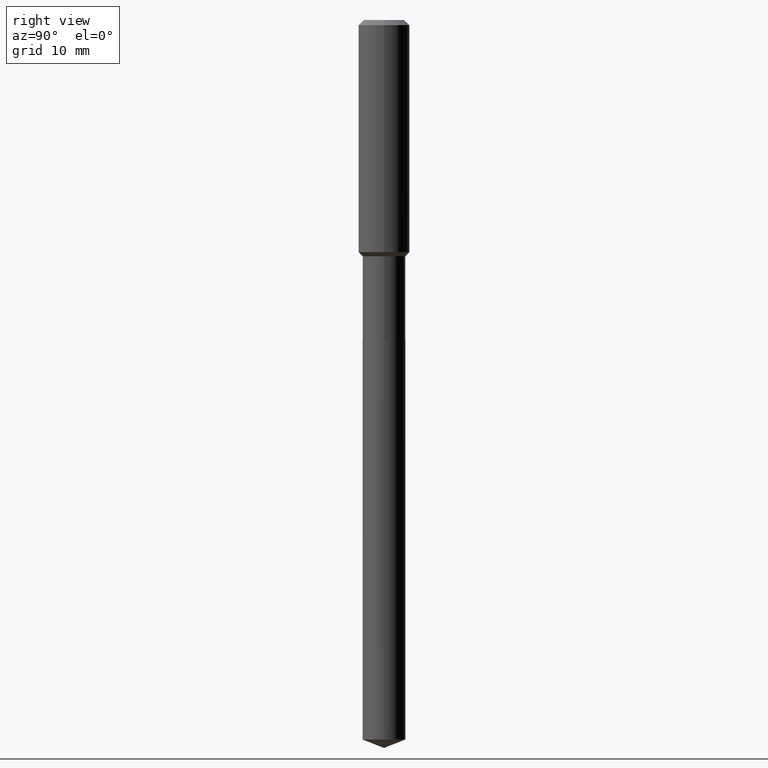
[diagram: clean part render]
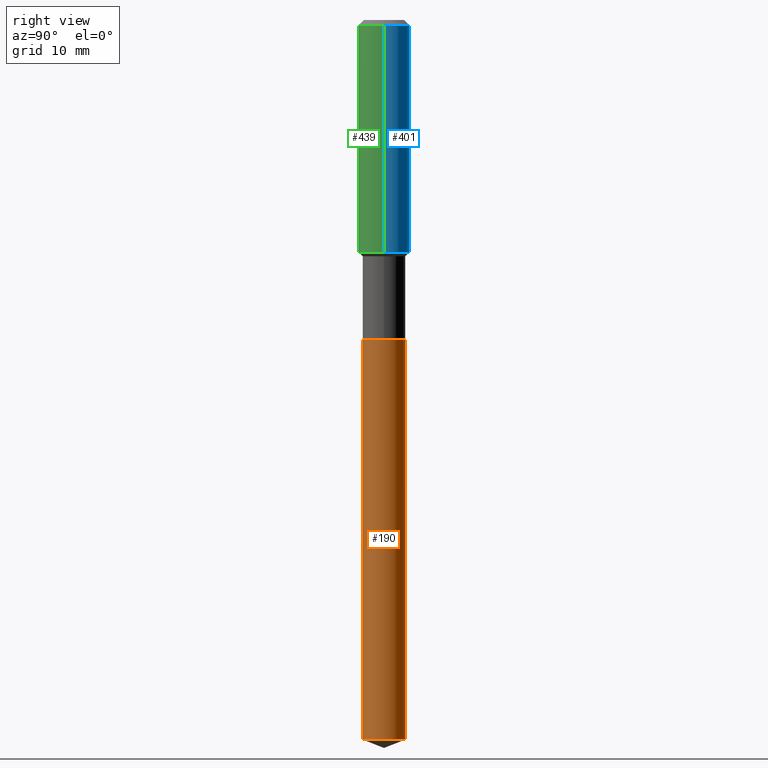
[diagram: same view with three faces highlighted in distinct colors, each labeled with its STEP entity id]
A machine part, right view with three faces highlighted in distinct colors.
Their STEP definitions:

[orange] entity #190 — the highlighted cylindrical surface (edge-blend (fillet) strip) has radius 3.3503 mm, axis along (-0, 0, 1).
#6 = AXIS2_PLACEMENT_3D ( 'NONE', #229, #231, #264 ) ;
#9 = ORIENTED_EDGE ( 'NONE', *, *, #341, .F. ) ;
#29 = LINE ( 'NONE', #41, #478 ) ;
#30 = EDGE_CURVE ( 'NONE', #297, #129, #272, .T. ) ;
#31 = DIRECTION ( 'NONE',  ( -2.445397477310179660E-29, 3.491583485851871163E-15, 1.000000000000000000 ) ) ;
#41 = CARTESIAN_POINT ( 'NONE',  ( 9.372058684676199937E-16, 0.1318999999999931061, -1.968500000000000361 ) ) ;
#70 = DIRECTION ( 'NONE',  ( -2.445397477310179380E-29, 3.491583485851871163E-15, 1.000000000000000000 ) ) ;
#81 = ORIENTED_EDGE ( 'NONE', *, *, #30, .F. ) ;
#87 = ORIENTED_EDGE ( 'NONE', *, *, #274, .T. ) ;
#91 = LINE ( 'NONE', #234, #462 ) ;
#107 = CYLINDRICAL_SURFACE ( 'NONE', #421, 0.1318999999999999895 ) ;
#129 = VERTEX_POINT ( 'NONE', #276 ) ;
#149 = VERTEX_POINT ( 'NONE', #199 ) ;
#151 = ORIENTED_EDGE ( 'NONE', *, *, #353, .T. ) ;
#152 = AXIS2_PLACEMENT_3D ( 'NONE', #250, #219, #461 ) ;
#171 = DIRECTION ( 'NONE',  ( -6.982962677686265922E-15, -1.000000000000000000, 4.142301734138382417E-15 ) ) ;
#190 = ADVANCED_FACE ( 'NONE', ( #446 ), #107, .T. ) ;
#199 = CARTESIAN_POINT ( 'NONE',  ( 9.372058684676801443E-16, 0.1318999999999844741, -4.436243208266390070 ) ) ;
#219 = DIRECTION ( 'NONE',  ( -2.445397477310179660E-29, 3.491583485851871163E-15, 1.000000000000000000 ) ) ;
#229 = CARTESIAN_POINT ( 'NONE',  ( 4.813905344975441835E-29, -6.872981015512731707E-15, -1.968500000000000139 ) ) ;
#231 = DIRECTION ( 'NONE',  ( -2.445397477310179660E-29, 3.491583485851871163E-15, 1.000000000000000000 ) ) ;
#234 = CARTESIAN_POINT ( 'NONE',  ( -9.210527771867702945E-16, -0.1319000000000068729, -1.968499999999999250 ) ) ;
#247 = CARTESIAN_POINT ( 'NONE',  ( 4.813905344975440714E-29, -6.872981015512730918E-15, -1.968499999999999694 ) ) ;
#250 = CARTESIAN_POINT ( 'NONE',  ( 1.084851836111940160E-28, -1.548931244881877348E-14, -4.436243208266390070 ) ) ;
#257 = VERTEX_POINT ( 'NONE', #273 ) ;
#264 = DIRECTION ( 'NONE',  ( -6.982962677686265922E-15, -1.000000000000000000, 4.142301734138382417E-15 ) ) ;
#272 = CIRCLE ( 'NONE', #6, 0.1318999999999999895 ) ;
#273 = CARTESIAN_POINT ( 'NONE',  ( -9.210527771867097494E-16, -0.1319000000000154493, -4.436243208266389182 ) ) ;
#274 = EDGE_CURVE ( 'NONE', #257, #149, #486, .T. ) ;
#276 = CARTESIAN_POINT ( 'NONE',  ( 9.372058684676809332E-16, 0.1318999999999931061, -1.968500000000000583 ) ) ;
#297 = VERTEX_POINT ( 'NONE', #364 ) ;
#341 = EDGE_CURVE ( 'NONE', #257, #297, #91, .T. ) ;
#353 = EDGE_CURVE ( 'NONE', #149, #129, #29, .T. ) ;
#364 = CARTESIAN_POINT ( 'NONE',  ( -9.210527771867702945E-16, -0.1319000000000068729, -1.968499999999999472 ) ) ;
#391 = EDGE_LOOP ( 'NONE', ( #87, #151, #81, #9 ) ) ;
#400 = DIRECTION ( 'NONE',  ( -2.445397477310179380E-29, 3.491583485851871163E-15, 1.000000000000000000 ) ) ;
#421 = AXIS2_PLACEMENT_3D ( 'NONE', #247, #31, #171 ) ;
#446 = FACE_OUTER_BOUND ( 'NONE', #391, .T. ) ;
#461 = DIRECTION ( 'NONE',  ( -6.982962677686265922E-15, -1.000000000000000000, 4.142301734138382417E-15 ) ) ;
#462 = VECTOR ( 'NONE', #70, 39.37007874015748143 ) ;
#478 = VECTOR ( 'NONE', #400, 39.37007874015748143 ) ;
#486 = CIRCLE ( 'NONE', #152, 0.1318999999999999895 ) ;

[blue] entity #401 — the highlighted cylindrical surface (edge-blend (fillet) strip) has radius 4.0005 mm, axis along (-0, 0, 1).
#26 = DIRECTION ( 'NONE',  ( -2.445468806185136597E-29, 3.491481338843145583E-15, 1.000000000000000000 ) ) ;
#36 = CYLINDRICAL_SURFACE ( 'NONE', #306, 0.1575000000000000844 ) ;
#44 = EDGE_CURVE ( 'NONE', #348, #385, #94, .T. ) ;
#56 = ORIENTED_EDGE ( 'NONE', *, *, #258, .T. ) ;
#69 = AXIS2_PLACEMENT_3D ( 'NONE', #473, #26, #386 ) ;
#88 = LINE ( 'NONE', #172, #449 ) ;
#94 = CIRCLE ( 'NONE', #69, 0.1575000000000001676 ) ;
#104 = DIRECTION ( 'NONE',  ( -2.445468806185136597E-29, 3.491481338843145583E-15, 1.000000000000000000 ) ) ;
#112 = CARTESIAN_POINT ( 'NONE',  ( 0.1575000000000000844, -1.099816621735587677E-15, 7.679978421878603638E-30 ) ) ;
#117 = CIRCLE ( 'NONE', #213, 0.1575000000000000011 ) ;
#172 = CARTESIAN_POINT ( 'NONE',  ( -0.1575000000000000844, 1.119104808822158392E-15, -7.747322767151481189E-30 ) ) ;
#196 = VERTEX_POINT ( 'NONE', #320 ) ;
#204 = CARTESIAN_POINT ( 'NONE',  ( 0.1575000000000001676, -6.095777269486245186E-15, -1.430900000000000061 ) ) ;
#213 = AXIS2_PLACEMENT_3D ( 'NONE', #223, #381, #346 ) ;
#223 = CARTESIAN_POINT ( 'NONE',  ( 7.703226739483228723E-31, -1.099816621735597661E-16, -0.03150000000000019451 ) ) ;
#232 = ORIENTED_EDGE ( 'NONE', *, *, #267, .F. ) ;
#237 = FACE_OUTER_BOUND ( 'NONE', #483, .T. ) ;
#258 = EDGE_CURVE ( 'NONE', #385, #372, #88, .T. ) ;
#261 = ORIENTED_EDGE ( 'NONE', *, *, #44, .T. ) ;
#267 = EDGE_CURVE ( 'NONE', #348, #196, #334, .T. ) ;
#283 = DIRECTION ( 'NONE',  ( 1.000000000000000000, -6.982962677686267499E-15, 4.876176775795936353E-29 ) ) ;
#306 = AXIS2_PLACEMENT_3D ( 'NONE', #443, #104, #283 ) ;
#320 = CARTESIAN_POINT ( 'NONE',  ( 0.1575000000000000011, -1.209798283909146741E-15, -0.03150000000000019451 ) ) ;
#334 = LINE ( 'NONE', #112, #419 ) ;
#346 = DIRECTION ( 'NONE',  ( 1.000000000000000000, -6.982962677686265922E-15, 0.000000000000000000 ) ) ;
#348 = VERTEX_POINT ( 'NONE', #204 ) ;
#372 = VERTEX_POINT ( 'NONE', #397 ) ;
#381 = DIRECTION ( 'NONE',  ( -2.445468806185136597E-29, 3.491481338843145583E-15, 1.000000000000000000 ) ) ;
#385 = VERTEX_POINT ( 'NONE', #433 ) ;
#386 = DIRECTION ( 'NONE',  ( 1.000000000000000000, -6.982962677686267499E-15, 0.000000000000000000 ) ) ;
#397 = CARTESIAN_POINT ( 'NONE',  ( -0.1575000000000000011, -1.433866346139949795E-15, -0.03150000000000019451 ) ) ;
#401 = ADVANCED_FACE ( 'NONE', ( #237 ), #36, .T. ) ;
#414 = DIRECTION ( 'NONE',  ( -2.445468806185136877E-29, 3.491481338843145188E-15, 1.000000000000000000 ) ) ;
#419 = VECTOR ( 'NONE', #414, 39.37007874015748143 ) ;
#433 = CARTESIAN_POINT ( 'NONE',  ( -0.1575000000000001676, -3.876855838928498525E-15, -1.430900000000000061 ) ) ;
#443 = CARTESIAN_POINT ( 'NONE',  ( 0.000000000000000000, 0.000000000000000000, 0.000000000000000000 ) ) ;
#449 = VECTOR ( 'NONE', #452, 39.37007874015748143 ) ;
#452 = DIRECTION ( 'NONE',  ( -2.445468806185136877E-29, 3.491481338843145188E-15, 1.000000000000000000 ) ) ;
#460 = EDGE_CURVE ( 'NONE', #196, #372, #117, .T. ) ;
#469 = ORIENTED_EDGE ( 'NONE', *, *, #460, .F. ) ;
#473 = CARTESIAN_POINT ( 'NONE',  ( 3.499221314770312017E-29, -4.995960647750656917E-15, -1.430900000000000061 ) ) ;
#483 = EDGE_LOOP ( 'NONE', ( #261, #56, #469, #232 ) ) ;

[green] entity #439 — the highlighted cylindrical surface (edge-blend (fillet) strip) has radius 4.0005 mm, axis along (-0, 0, 1).
#18 = AXIS2_PLACEMENT_3D ( 'NONE', #58, #354, #358 ) ;
#58 = CARTESIAN_POINT ( 'NONE',  ( 3.499221314770312017E-29, -4.995960647750656917E-15, -1.430900000000000061 ) ) ;
#74 = DIRECTION ( 'NONE',  ( -2.445468806185136597E-29, 3.491481338843145583E-15, 1.000000000000000000 ) ) ;
#76 = AXIS2_PLACEMENT_3D ( 'NONE', #475, #268, #132 ) ;
#88 = LINE ( 'NONE', #172, #449 ) ;
#112 = CARTESIAN_POINT ( 'NONE',  ( 0.1575000000000000844, -1.099816621735587677E-15, 7.679978421878603638E-30 ) ) ;
#132 = DIRECTION ( 'NONE',  ( 1.000000000000000000, -6.982962677686265922E-15, 0.000000000000000000 ) ) ;
#172 = CARTESIAN_POINT ( 'NONE',  ( -0.1575000000000000844, 1.119104808822158392E-15, -7.747322767151481189E-30 ) ) ;
#196 = VERTEX_POINT ( 'NONE', #320 ) ;
#204 = CARTESIAN_POINT ( 'NONE',  ( 0.1575000000000001676, -6.095777269486245186E-15, -1.430900000000000061 ) ) ;
#253 = EDGE_CURVE ( 'NONE', #372, #196, #300, .T. ) ;
#258 = EDGE_CURVE ( 'NONE', #385, #372, #88, .T. ) ;
#265 = ORIENTED_EDGE ( 'NONE', *, *, #349, .T. ) ;
#267 = EDGE_CURVE ( 'NONE', #348, #196, #334, .T. ) ;
#268 = DIRECTION ( 'NONE',  ( -2.445468806185136597E-29, 3.491481338843145583E-15, 1.000000000000000000 ) ) ;
#275 = AXIS2_PLACEMENT_3D ( 'NONE', #458, #74, #336 ) ;
#285 = CIRCLE ( 'NONE', #18, 0.1575000000000001676 ) ;
#288 = CYLINDRICAL_SURFACE ( 'NONE', #275, 0.1575000000000000844 ) ;
#300 = CIRCLE ( 'NONE', #76, 0.1575000000000000011 ) ;
#320 = CARTESIAN_POINT ( 'NONE',  ( 0.1575000000000000011, -1.209798283909146741E-15, -0.03150000000000019451 ) ) ;
#334 = LINE ( 'NONE', #112, #419 ) ;
#336 = DIRECTION ( 'NONE',  ( 1.000000000000000000, -6.982962677686267499E-15, 4.876176775795936353E-29 ) ) ;
#348 = VERTEX_POINT ( 'NONE', #204 ) ;
#349 = EDGE_CURVE ( 'NONE', #385, #348, #285, .T. ) ;
#354 = DIRECTION ( 'NONE',  ( -2.445468806185136597E-29, 3.491481338843145583E-15, 1.000000000000000000 ) ) ;
#358 = DIRECTION ( 'NONE',  ( 1.000000000000000000, -6.982962677686267499E-15, 0.000000000000000000 ) ) ;
#372 = VERTEX_POINT ( 'NONE', #397 ) ;
#379 = EDGE_LOOP ( 'NONE', ( #384, #265, #457, #467 ) ) ;
#384 = ORIENTED_EDGE ( 'NONE', *, *, #258, .F. ) ;
#385 = VERTEX_POINT ( 'NONE', #433 ) ;
#397 = CARTESIAN_POINT ( 'NONE',  ( -0.1575000000000000011, -1.433866346139949795E-15, -0.03150000000000019451 ) ) ;
#414 = DIRECTION ( 'NONE',  ( -2.445468806185136877E-29, 3.491481338843145188E-15, 1.000000000000000000 ) ) ;
#419 = VECTOR ( 'NONE', #414, 39.37007874015748143 ) ;
#433 = CARTESIAN_POINT ( 'NONE',  ( -0.1575000000000001676, -3.876855838928498525E-15, -1.430900000000000061 ) ) ;
#439 = ADVANCED_FACE ( 'NONE', ( #489 ), #288, .T. ) ;
#449 = VECTOR ( 'NONE', #452, 39.37007874015748143 ) ;
#452 = DIRECTION ( 'NONE',  ( -2.445468806185136877E-29, 3.491481338843145188E-15, 1.000000000000000000 ) ) ;
#457 = ORIENTED_EDGE ( 'NONE', *, *, #267, .T. ) ;
#458 = CARTESIAN_POINT ( 'NONE',  ( 0.000000000000000000, 0.000000000000000000, 0.000000000000000000 ) ) ;
#467 = ORIENTED_EDGE ( 'NONE', *, *, #253, .F. ) ;
#475 = CARTESIAN_POINT ( 'NONE',  ( 7.703226739483228723E-31, -1.099816621735597661E-16, -0.03150000000000019451 ) ) ;
#489 = FACE_OUTER_BOUND ( 'NONE', #379, .T. ) ;